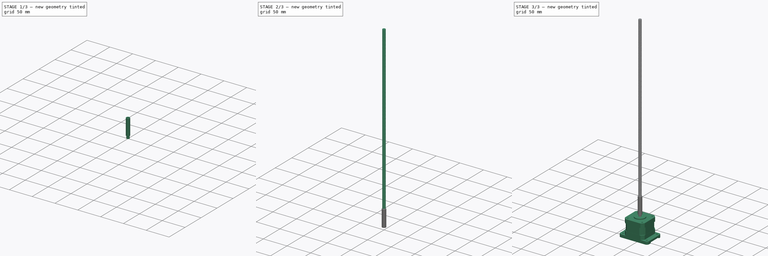
[diagram: build sequence overview — one tinted view per stage of 3, left to right]
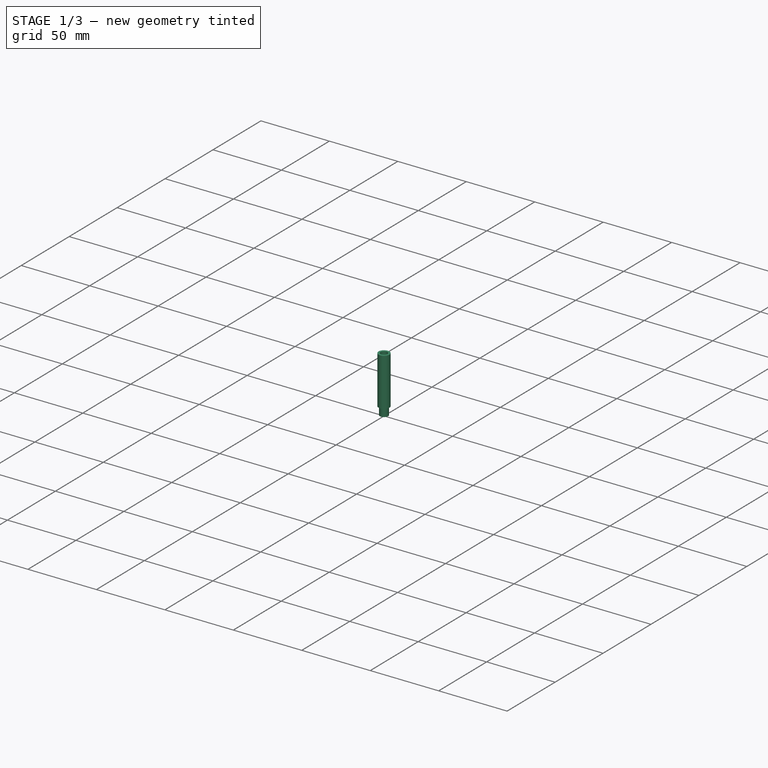
[diagram: stage 1 of 3 — iso view after this stage's code; geometry added in this stage tinted green]
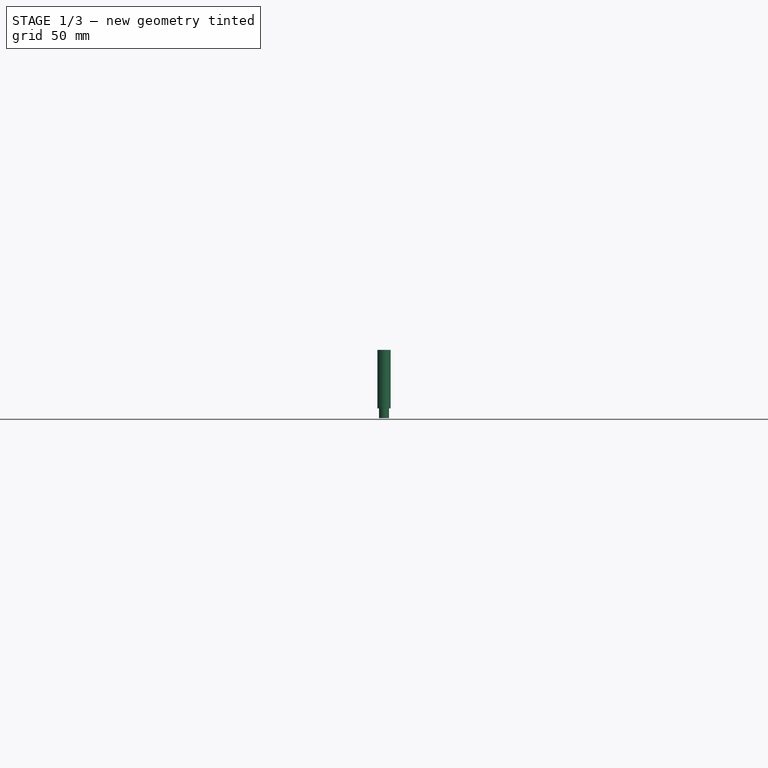
[diagram: stage 1 of 3 — front view after this stage's code; geometry added in this stage tinted green]
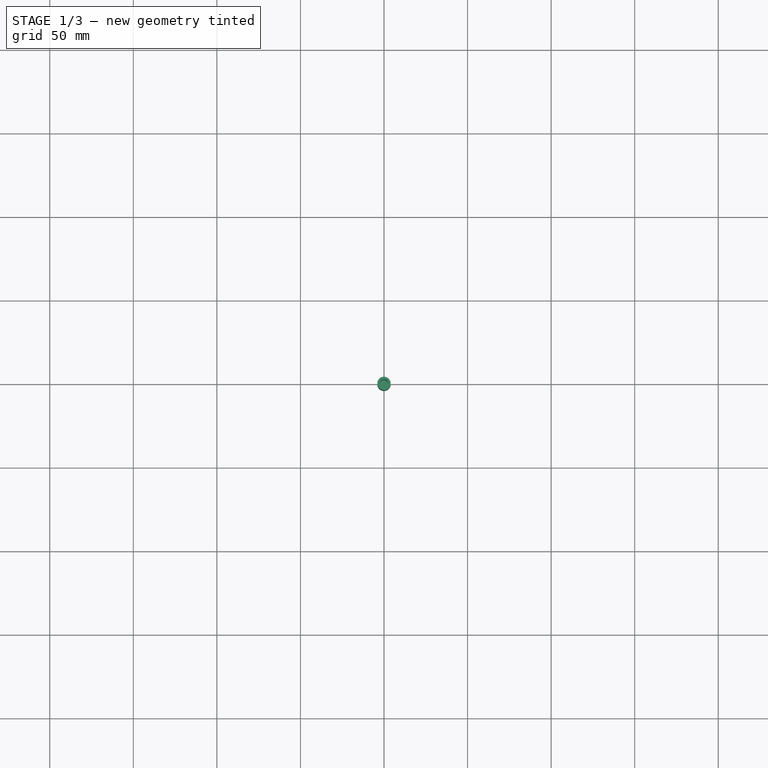
[diagram: stage 1 of 3 — top view after this stage's code; geometry added in this stage tinted green]
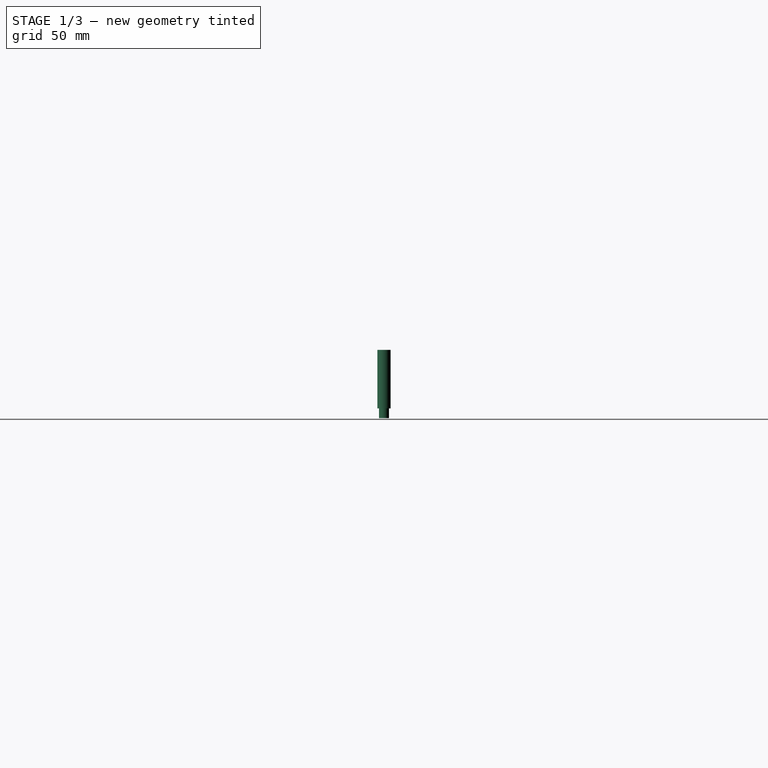
[diagram: stage 1 of 3 — right view after this stage's code; geometry added in this stage tinted green]
FCSTD DOCUMENT  (FreeCAD 0.20R29177 (Git))
Label: AT_913a_Zaxis
License: All rights reserved
LicenseURL: http://en.wikipedia.org/wiki/All_rights_reserved
objects: Part::FeaturePython×4, App::FeaturePython×4, PartDesign::AdditiveCylinder×1, Sketcher::SketchObject×1, PartDesign::SubtractiveHelix×1, PartDesign::Body×1
note: 9 computed .brp shape members not serialized (recipe doc carries the construction recipe); baked Part::Feature solids carry a one-line shape summary decoded from their .brp

FEATURE [App::FeaturePython] planeCoincident_001  label="planeCoincident_001__Nema 17 Stepper L33_001"  # a2plus constraint (typed FeaturePython)
  Object1 = b_AQ_007b_Zmotfix_001_
  Object2 = b_Nema_17_Stepper_L33_001_
  ParentTreeObject = -> b_AQ_007b_Zmotfix_001_
  SubElement1 = Face2
  SubElement2 = Face35
  Suppressed = false
  Type = plane
  directionConstraint = 1
  offset = 0
FEATURE [App::FeaturePython] planeCoincident_001_mirror  label="planeCoincident_001__AQ_007b_Zmotfix_001"  # a2plus constraint (typed FeaturePython)
  Object1 = b_AQ_007b_Zmotfix_001_
  Object2 = b_Nema_17_Stepper_L33_001_
  ParentTreeObject = -> b_Nema_17_Stepper_L33_001_
  SubElement1 = Face2
  SubElement2 = Face35
  Suppressed = false
  Type = plane
  directionConstraint = 1
  offset = 0
FEATURE [App::FeaturePython] axisCoincident_001  label="axisCoincident_001__Nema 17 Stepper L33_001"  # a2plus constraint (typed FeaturePython)
  Object1 = b_AQ_007b_Zmotfix_001_
  Object2 = b_Nema_17_Stepper_L33_001_
  ParentTreeObject = -> b_AQ_007b_Zmotfix_001_
  SubElement1 = Face15
  SubElement2 = Face42
  Suppressed = false
  Type = axial
  directionConstraint = 1
  lockRotation = false
FEATURE [App::FeaturePython] axisCoincident_001_mirror  label="axisCoincident_001__AQ_007b_Zmotfix_001"  # a2plus constraint (typed FeaturePython)
  Object1 = b_AQ_007b_Zmotfix_001_
  Object2 = b_Nema_17_Stepper_L33_001_
  ParentTreeObject = -> b_Nema_17_Stepper_L33_001_
  SubElement1 = Face15
  SubElement2 = Face42
  Suppressed = false
  Type = axial
  directionConstraint = 1
  lockRotation = false
FEATURE [PartDesign::AdditiveCylinder] Cylinder
  Angle = 360
  AttacherType = Attacher::AttachEngine3D
  FirstAngle = 0
  Height = 10
  Radius = 3
  SecondAngle = 0
FEATURE [Part::FeaturePython] Tube  # WARN: FeaturePython — macro-defined, semantics opaque (R4)
  AttacherType = Attacher::AttachEngine3D
  Height = 35
  InnerRadius = 2.5
  OuterRadius = 4
  Placement = pos=(0,0,5.9) rot=(0,0,1;0rad)
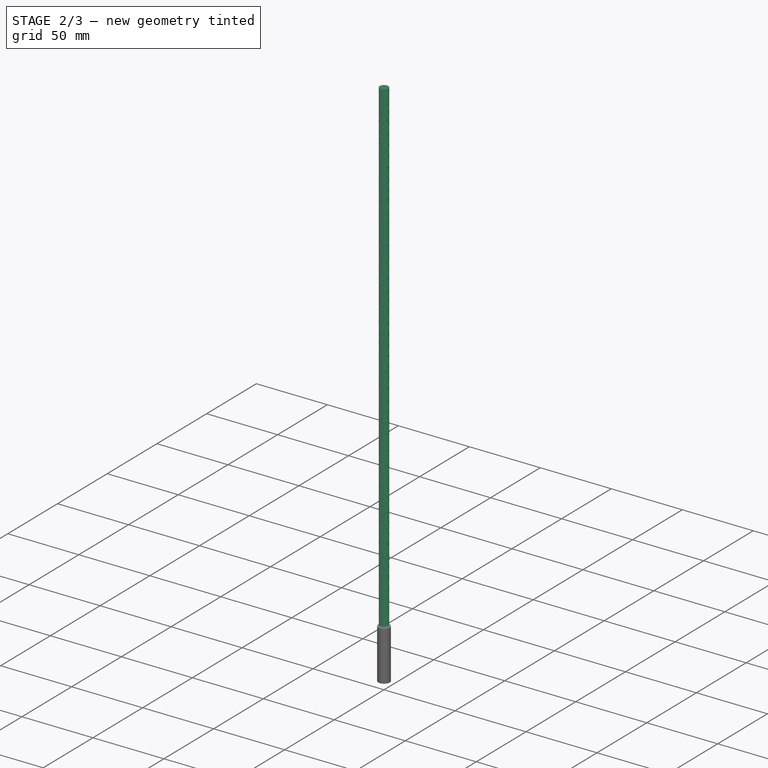
[diagram: stage 2 of 3 — iso view after this stage's code; geometry added in this stage tinted green]
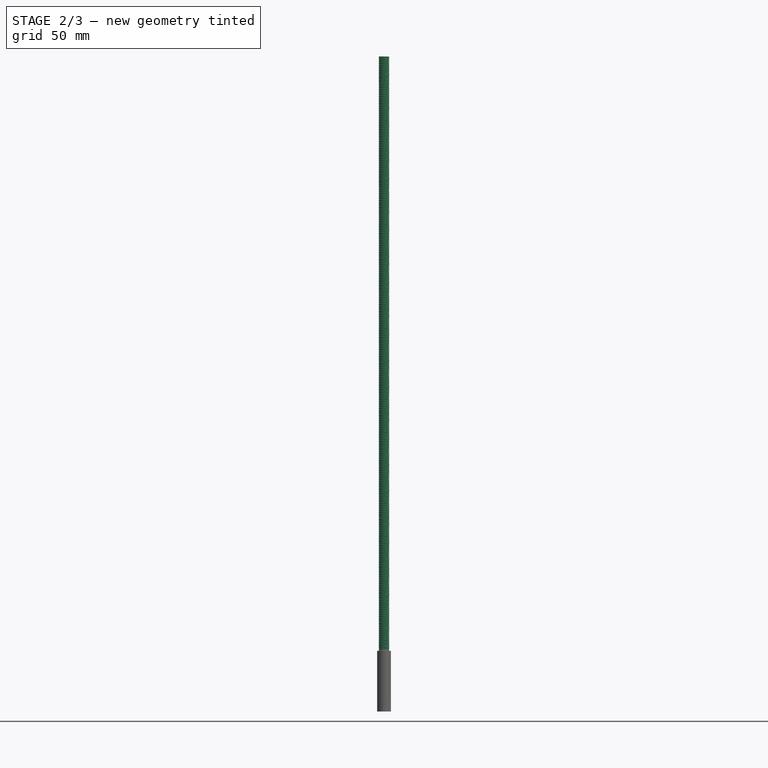
[diagram: stage 2 of 3 — front view after this stage's code; geometry added in this stage tinted green]
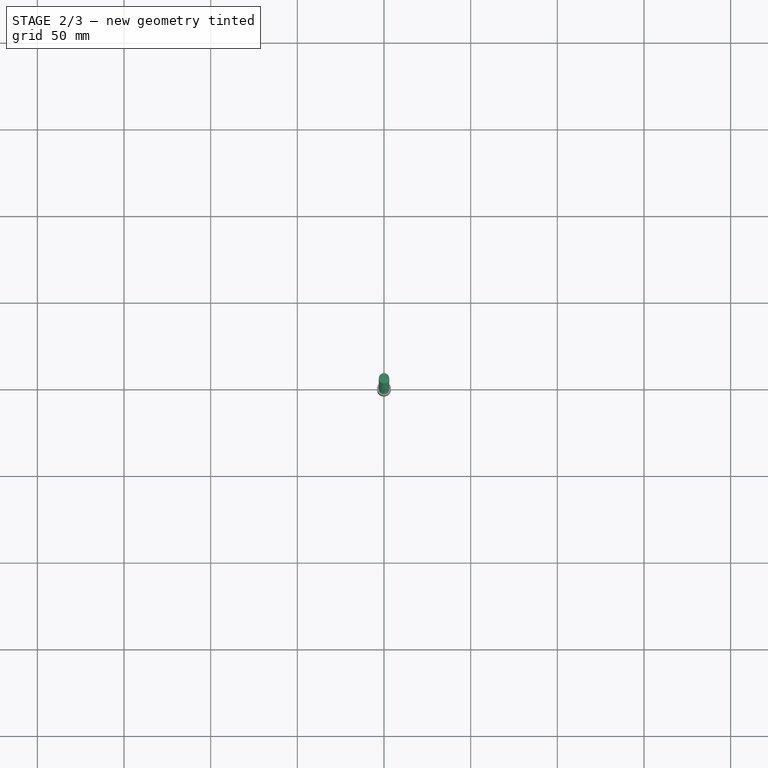
[diagram: stage 2 of 3 — top view after this stage's code; geometry added in this stage tinted green]
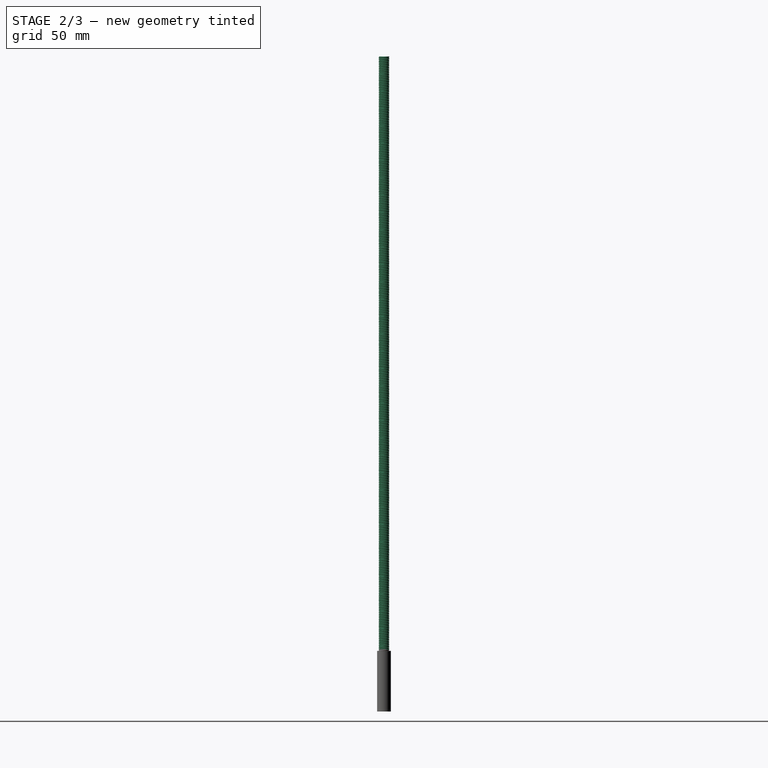
[diagram: stage 2 of 3 — right view after this stage's code; geometry added in this stage tinted green]
FEATURE [Sketcher::SketchObject] Sketch
  FullyConstrained = false
  MapMode = 5
  Placement = pos=(0,0,0) rot=(1,0,0;1.5708rad)
  Support = -> [XZ_Plane]
  sketch-geometry (4):
    g0: LineSegment StartX=2.6 StartY=0 StartZ=0 EndX=6.65124 EndY=-2.33898 EndZ=0
    g1: LineSegment StartX=6.65124 StartY=-2.33898 StartZ=0 EndX=6.65124 EndY=2.33898 EndZ=0
    g2: LineSegment StartX=6.65124 StartY=2.33898 StartZ=0 EndX=2.6 EndY=0 EndZ=0
    g3: Circle CenterX=5.30082 CenterY=3e-16 CenterZ=0 NormalX=0 NormalY=0 NormalZ=1 AngleXU=0 Radius=2.70082
  constraints (11):
    c: Coincident(g0,g1)
    c: Coincident(g1,g2)
    c: Coincident(g2,g0)
    c: Equal(g0,g1)
    c: Equal(g0,g2)
    c: PointOnObject(g0,g3)
    c: PointOnObject(g1,g3)
    c: PointOnObject(g2,g3)
    c: PointOnObject(g2,g-1)
    c: Vertical(g1)
    c: DistanceX(g-2,g0) = 2.6
FEATURE [PartDesign::SubtractiveHelix] SubtractiveHelix
  Angle = 0
  Axis = (0,2e-16,1)
  Base = (0,0,0)
  BaseFeature = -> Cylinder
  Growth = 0
  HasBeenEdited = true
  Height = 11
  LeftHanded = false
  Mode = 0
  Outside = false
  Pitch = 1
  Profile = -> Sketch
  ReferenceAxis = -> Sketch [V_Axis]
  Turns = 11
FEATURE [PartDesign::Body] Body
  Group = -> [Cylinder,Sketch,SubtractiveHelix]
  Origin = -> Origin
  Placement = pos=(0,0,23.8) rot=(0,0,1;0rad)
  Tip = -> SubtractiveHelix
FEATURE [Part::FeaturePython] Array  # Draft array (typed FeaturePython)
  AlwaysSyncPlacement = false
  Angle = 360
  ArrayType = 0
  Axis = (0,0,1)
  Base = -> Body
  Center = (0,0,0)
  Count = 36
  ExpandArray = false
  Fuse = false
  IntervalAxis = (0,0,0)
  IntervalX = (100,0,0)
  IntervalY = (0,100,0)
  IntervalZ = (0,0,10)
  NumberCircles = 3
  NumberPolar = 5
  NumberX = 1
  NumberY = 1
  NumberZ = 36
  PlacementList = 36 placements: arithmetic series from (0,0,23.8) step (0,0,10) to (0,0,373.8)
  RadialDistance = 50
  ScaleList = (36) [(1,1,1),(1,1,1),(1,1,1),(1,1,1),(1,1,1),(1,1,1),(1,1,1),(1,1,1),(1,1,1),(1,1,1),(1,1,1),(1,1,1),(1,1,1),(1,1,1),(1,1,1),(1,1,1),(1,1,1),(1,1,1),+18 more]
  Symmetry = 1
  TangentialDistance = 25
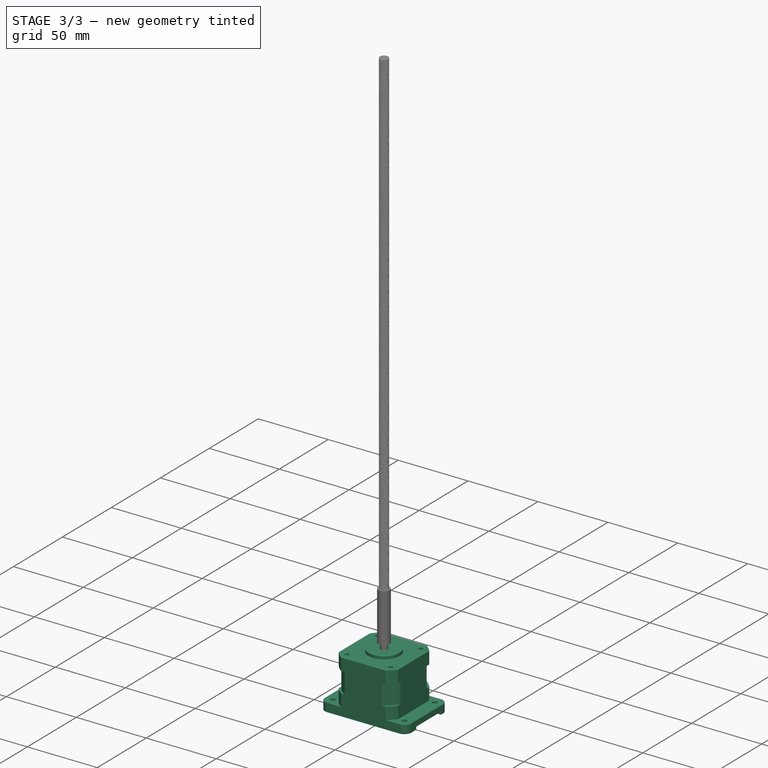
[diagram: stage 3 of 3 — iso view after this stage's code; geometry added in this stage tinted green]
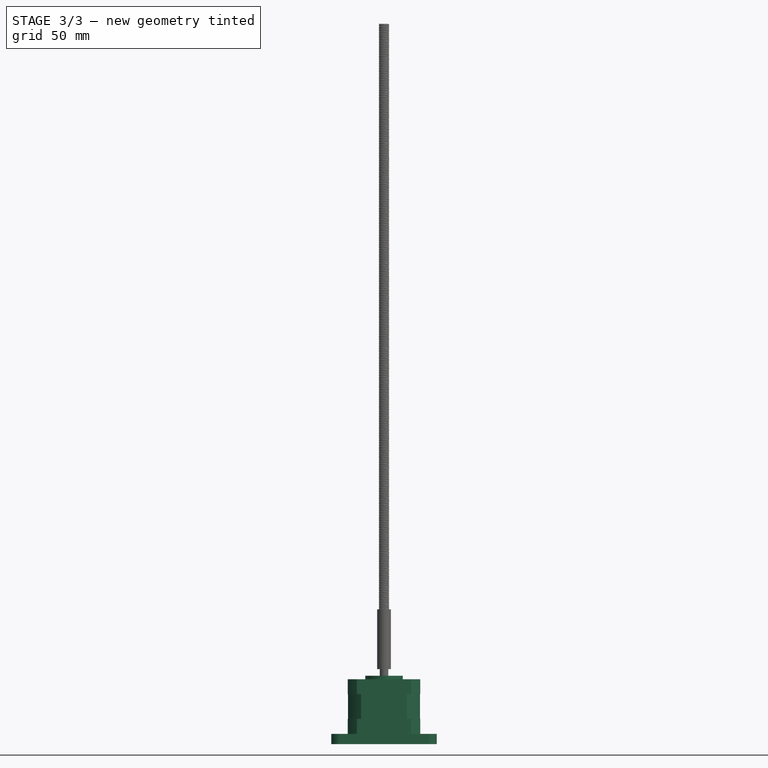
[diagram: stage 3 of 3 — front view after this stage's code; geometry added in this stage tinted green]
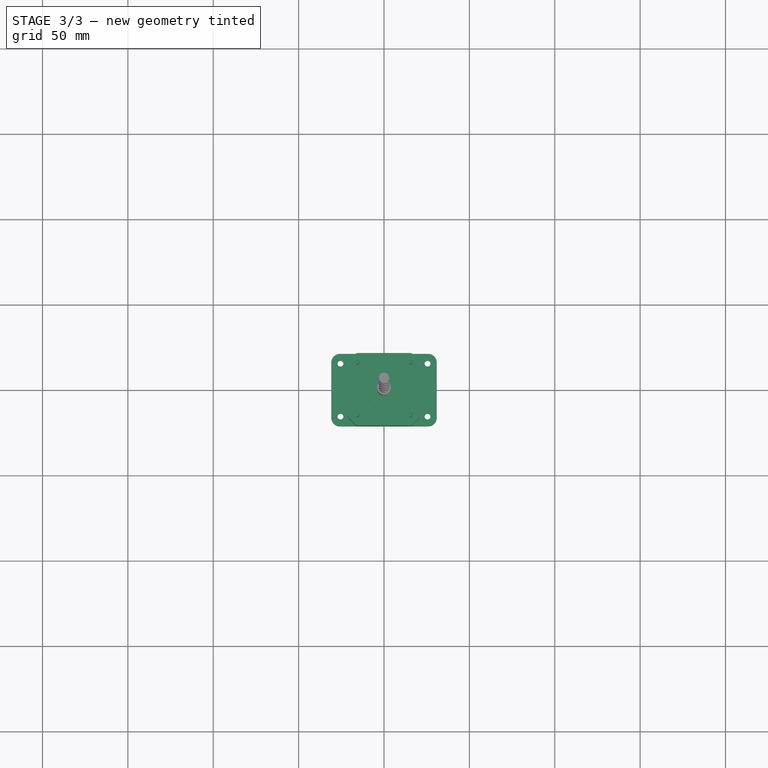
[diagram: stage 3 of 3 — top view after this stage's code; geometry added in this stage tinted green]
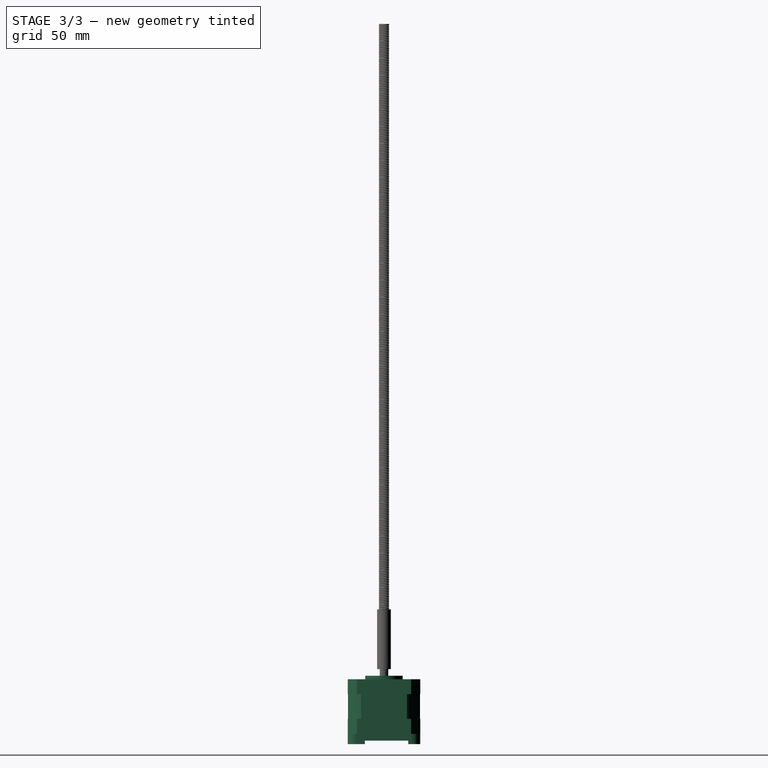
[diagram: stage 3 of 3 — right view after this stage's code; geometry added in this stage tinted green]
FEATURE [Part::FeaturePython] b_Nema_17_Stepper_L33_001_  label="Nema 17 Stepper L33_001"  # a2plus imported part (geometry in sourceFile) (typed FeaturePython)
  a2p_Version = V0.1
  fixedPosition = true
  objectType = a2pPart
  sourceFile = ./Nema 17 Stepper L33.FCStd
  subassemblyImport = false
  timeLastImport = 1644868912
  updateColors = true
FEATURE [Part::FeaturePython] b_AQ_007b_Zmotfix_001_  label="AQ_007b_Zmotfix_001"  # a2plus imported part (geometry in sourceFile) (typed FeaturePython)
  Placement = pos=(-72.2214,-434.992,-56.8) rot=(0,0,1;0rad)
  a2p_Version = V0.1
  fixedPosition = false
  objectType = a2pPart
  sourceFile = ./AQ_007b_Zmotfix.FCStd
  subassemblyImport = false
  timeLastImport = 1656482484
  updateColors = true
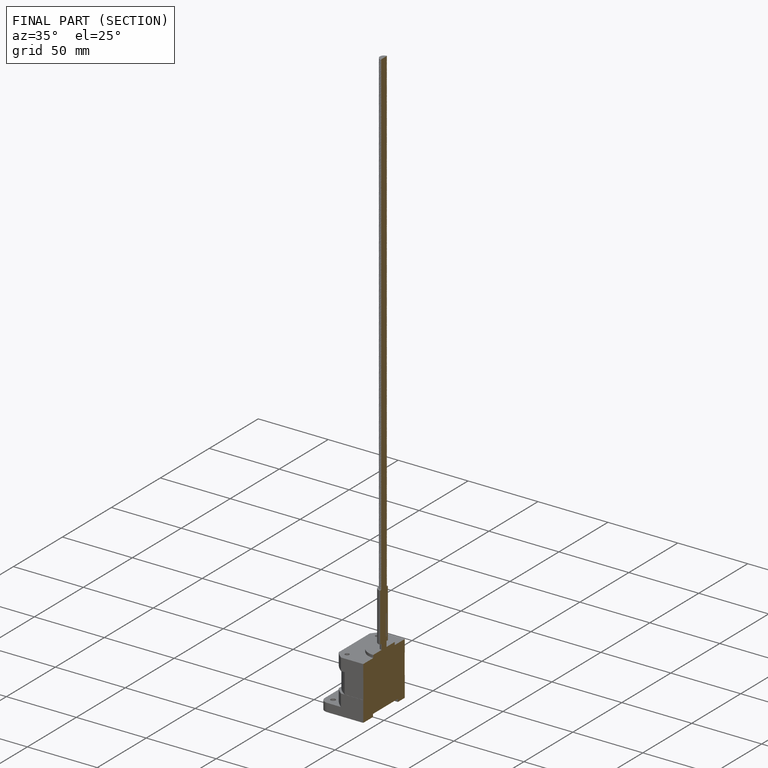
[diagram: finished part — half-section view (interior)]
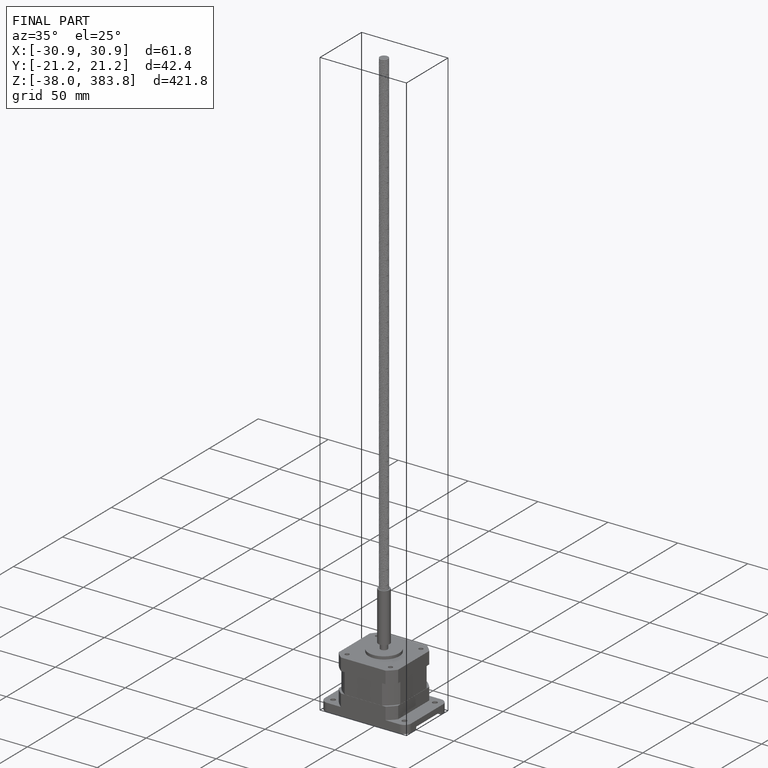
[diagram: finished part — iso view with bounding-box wireframe]
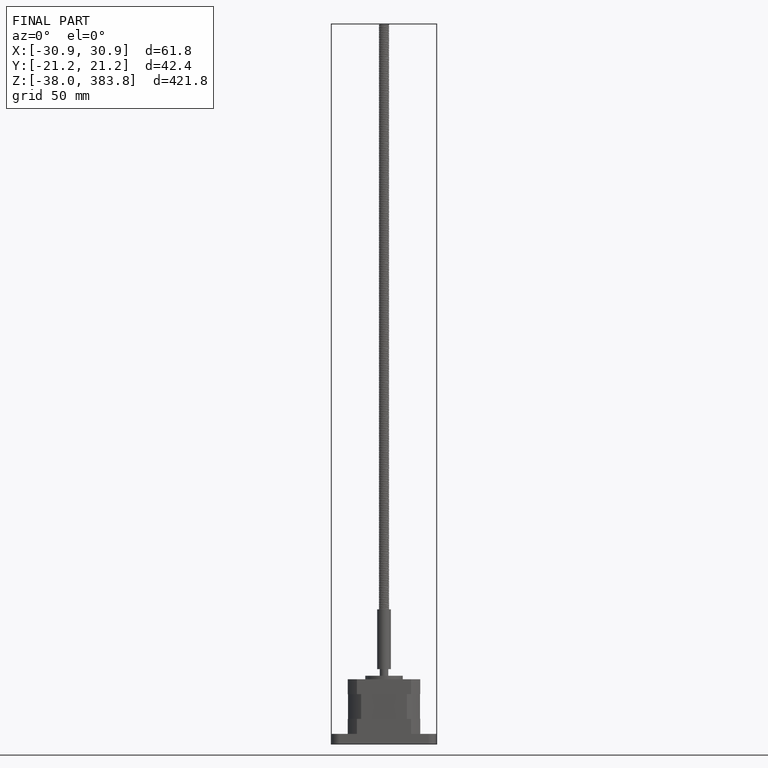
[diagram: finished part — front view with bounding-box wireframe]
